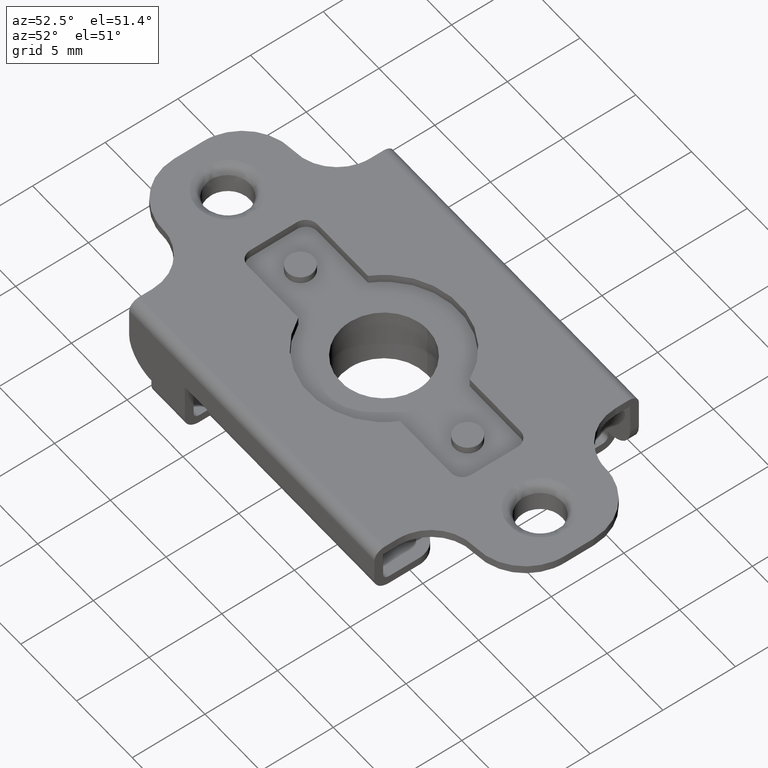
[diagram: clean part render]
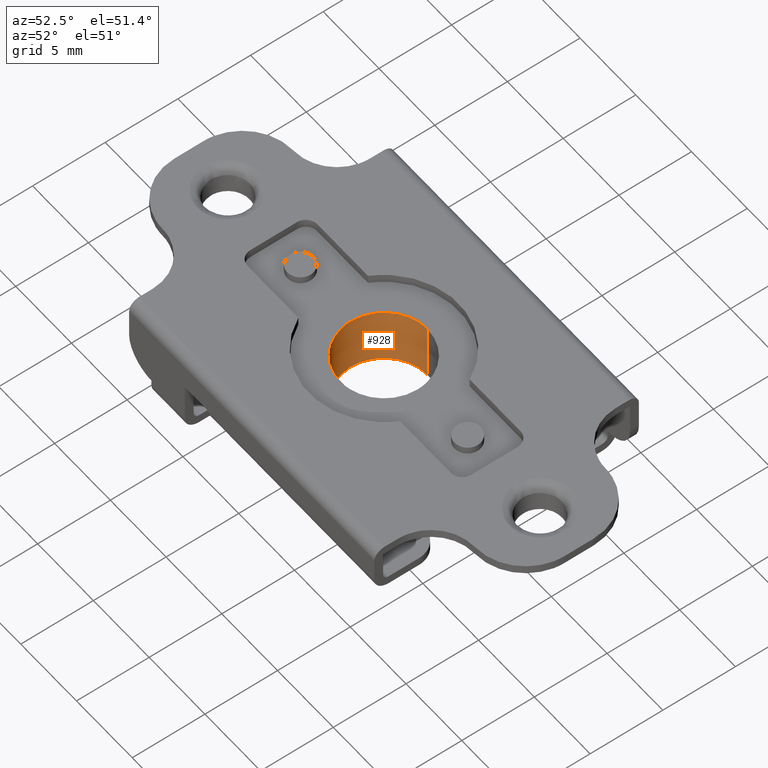
[diagram: same view with one face highlighted and labeled with its STEP entity id]
A machine part, auxiliary view. The second image highlights one B-rep face of the part: STEP entity #928.
In plain terms, the highlighted face is a freeform B-spline surface patch.
Its self-contained STEP definition (entity closure, byte-faithful):
#78=CARTESIAN_POINT('',(-0.026179606555406,2.999885769191988,-4.600000000000000));
#79=VERTEX_POINT('',#78);
#95=CARTESIAN_POINT('',(-3.000000000000086,0.0,-4.600000000000000));
#96=VERTEX_POINT('',#95);
#97=CARTESIAN_POINT('',(-0.026179606555407,2.999885769191988,-4.600000000000001));
#98=CARTESIAN_POINT('',(-3.000000000000086,2.973933631725253,-4.600000000000000));
#99=CARTESIAN_POINT('',(-3.000000000000086,0.0,-4.600000000000000));
#107=(BOUNDED_CURVE()B_SPLINE_CURVE(2,(#97,#98,#99),.UNSPECIFIED.,.F.,.U.)B_SPLINE_CURVE_WITH_KNOTS((3,3),(0.751539894338522,1.0),.UNSPECIFIED.)CURVE()GEOMETRIC_REPRESENTATION_ITEM()RATIONAL_B_SPLINE_CURVE((0.996414028092225,0.708910879624317,1.0))REPRESENTATION_ITEM(''));
#108=EDGE_CURVE('',#79,#96,#107,.T.);
#110=CARTESIAN_POINT('',(0.026179606555236,-2.999885769191988,-4.600000000000000));
#111=VERTEX_POINT('',#110);
#112=CARTESIAN_POINT('',(-3.000000000000086,0.0,-4.600000000000000));
#113=CARTESIAN_POINT('',(-3.000000000000085,-3.0,-4.599999999999999));
#114=CARTESIAN_POINT('',(-8.526513E-014,-3.0,-4.600000000000000));
#115=CARTESIAN_POINT('',(0.013090052492121,-3.000000000000000,-4.600000000000000));
#116=CARTESIAN_POINT('',(0.026179606555236,-2.999885769191989,-4.600000000000000));
#124=(BOUNDED_CURVE()B_SPLINE_CURVE(2,(#112,#113,#114,#115,#116),.UNSPECIFIED.,.F.,.U.)B_SPLINE_CURVE_WITH_KNOTS((3,2,3),(0.0,0.250000000000000,0.251539894338522),.UNSPECIFIED.)CURVE()GEOMETRIC_REPRESENTATION_ITEM()RATIONAL_B_SPLINE_CURVE((1.0,0.707106781186548,1.0,0.998195901562231,0.996414028092226))REPRESENTATION_ITEM(''));
#125=EDGE_CURVE('',#96,#111,#124,.T.);
#826=CARTESIAN_POINT('',(0.026179606546573,-2.999885769192064,-0.599999999999712));
#827=VERTEX_POINT('',#826);
#828=CARTESIAN_POINT('',(0.026179606555236,-2.999885769191988,-4.600000000000000));
#829=CARTESIAN_POINT('',(0.026179606546573,-2.999885769192064,-0.599999999999712));
#830=QUASI_UNIFORM_CURVE('',1,(#828,#829),.UNSPECIFIED.,.F.,.U.);
#831=EDGE_CURVE('',#111,#827,#830,.T.);
#848=CARTESIAN_POINT('',(-0.026179606546743,2.999885769192064,-0.599999999999712));
#849=VERTEX_POINT('',#848);
#865=CARTESIAN_POINT('',(-0.026179606555406,2.999885769191988,-4.600000000000000));
#866=CARTESIAN_POINT('',(-0.026179606546743,2.999885769192064,-0.599999999999712));
#867=QUASI_UNIFORM_CURVE('',1,(#865,#866),.UNSPECIFIED.,.F.,.U.);
#868=EDGE_CURVE('',#79,#849,#867,.T.);
#874=CARTESIAN_POINT('',(-0.026179606495207,2.999885769192513,-4.700000000000008));
#875=CARTESIAN_POINT('',(-3.026065375687719,2.973706162697392,-4.700000000000007));
#876=CARTESIAN_POINT('',(-2.999885769192598,-0.026179606495122,-4.700000000000008));
#877=CARTESIAN_POINT('',(-2.973706162697477,-3.026065375687634,-4.700000000000007));
#878=CARTESIAN_POINT('',(0.026179606495036,-2.999885769192513,-4.700000000000008));
#879=CARTESIAN_POINT('',(-0.026179606495207,2.999885769192513,-0.497499999999705));
#880=CARTESIAN_POINT('',(-3.026065375687719,2.973706162697392,-0.497499999999705));
#881=CARTESIAN_POINT('',(-2.999885769192598,-0.026179606495122,-0.497499999999705));
#882=CARTESIAN_POINT('',(-2.973706162697477,-3.026065375687634,-0.497499999999705));
#883=CARTESIAN_POINT('',(0.026179606495036,-2.999885769192513,-0.497499999999705));
#891=(BOUNDED_SURFACE()B_SPLINE_SURFACE(2,1,((#874,#879),(#875,#880),(#876,#881),(#877,#882),(#878,#883)),.UNSPECIFIED.,.F.,.F.,.U.)B_SPLINE_SURFACE_WITH_KNOTS((3,2,3),(2,2),(0.0,4.970562748477139,9.941125496954278),(0.0,4.202500000000303),.UNSPECIFIED.)GEOMETRIC_REPRESENTATION_ITEM()RATIONAL_B_SPLINE_SURFACE(((1.0,1.0),(0.707106781186548,0.707106781186548),(1.0,1.0),(0.707106781186548,0.707106781186548),(1.0,1.0)))REPRESENTATION_ITEM('')SURFACE());
#892=ORIENTED_EDGE('',*,*,#125,.F.);
#893=ORIENTED_EDGE('',*,*,#108,.F.);
#894=ORIENTED_EDGE('',*,*,#868,.T.);
#895=CARTESIAN_POINT('',(-3.000000000000086,0.0,-0.599999999999712));
#896=VERTEX_POINT('',#895);
#897=CARTESIAN_POINT('',(-3.000000000000086,0.0,-0.599999999999712));
#898=CARTESIAN_POINT('',(-3.000000000000086,2.973933631733842,-0.599999999999712));
#899=CARTESIAN_POINT('',(-0.026179606546743,2.999885769192064,-0.599999999999712));
#907=(BOUNDED_CURVE()B_SPLINE_CURVE(2,(#897,#898,#899),.UNSPECIFIED.,.F.,.U.)B_SPLINE_CURVE_WITH_KNOTS((3,3),(0.0,0.248460105661987),.UNSPECIFIED.)CURVE()GEOMETRIC_REPRESENTATION_ITEM()RATIONAL_B_SPLINE_CURVE((1.0,0.708910879623721,0.996414028093403))REPRESENTATION_ITEM(''));
#908=EDGE_CURVE('',#896,#849,#907,.T.);
#909=ORIENTED_EDGE('',*,*,#908,.F.);
#910=CARTESIAN_POINT('',(0.026179606546573,-2.999885769192064,-0.599999999999712));
#911=CARTESIAN_POINT('',(0.013090052487789,-3.000000000000000,-0.599999999999712));
#912=CARTESIAN_POINT('',(-8.526513E-014,-3.0,-0.599999999999712));
#913=CARTESIAN_POINT('',(-3.000000000000085,-3.0,-0.599999999999712));
#914=CARTESIAN_POINT('',(-3.000000000000086,0.0,-0.599999999999712));
#922=(BOUNDED_CURVE()B_SPLINE_CURVE(2,(#910,#911,#912,#913,#914),.UNSPECIFIED.,.F.,.U.)B_SPLINE_CURVE_WITH_KNOTS((3,2,3),(0.748460105661987,0.750000000000000,1.0),.UNSPECIFIED.)CURVE()GEOMETRIC_REPRESENTATION_ITEM()RATIONAL_B_SPLINE_CURVE((0.996414028093403,0.998195901562827,1.0,0.707106781186548,1.0))REPRESENTATION_ITEM(''));
#923=EDGE_CURVE('',#827,#896,#922,.T.);
#924=ORIENTED_EDGE('',*,*,#923,.F.);
#925=ORIENTED_EDGE('',*,*,#831,.F.);
#926=EDGE_LOOP('',(#892,#893,#894,#909,#924,#925));
#927=FACE_OUTER_BOUND('',#926,.T.);
#928=ADVANCED_FACE('',(#927),#891,.F.);